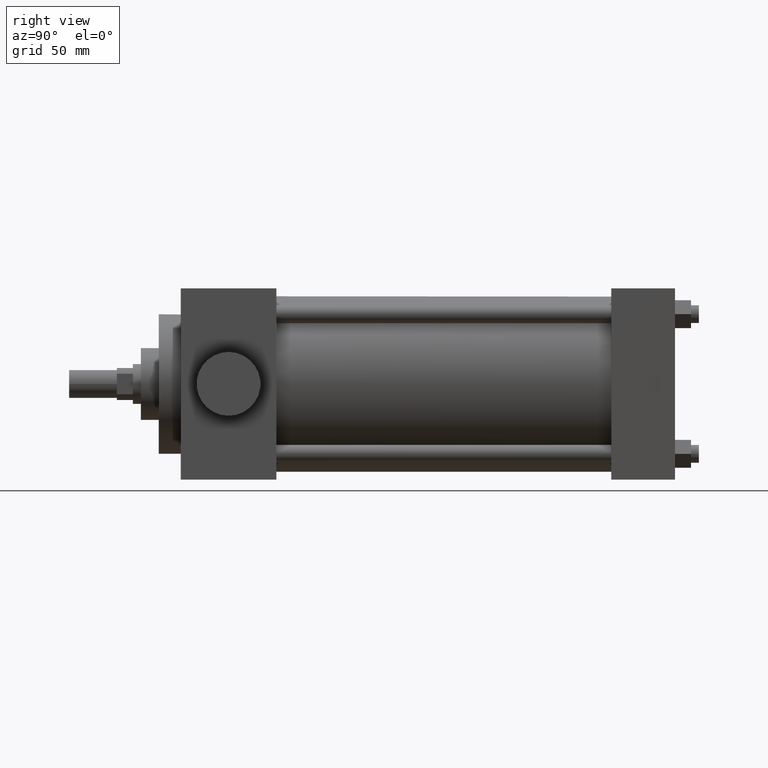
[diagram: clean part render]
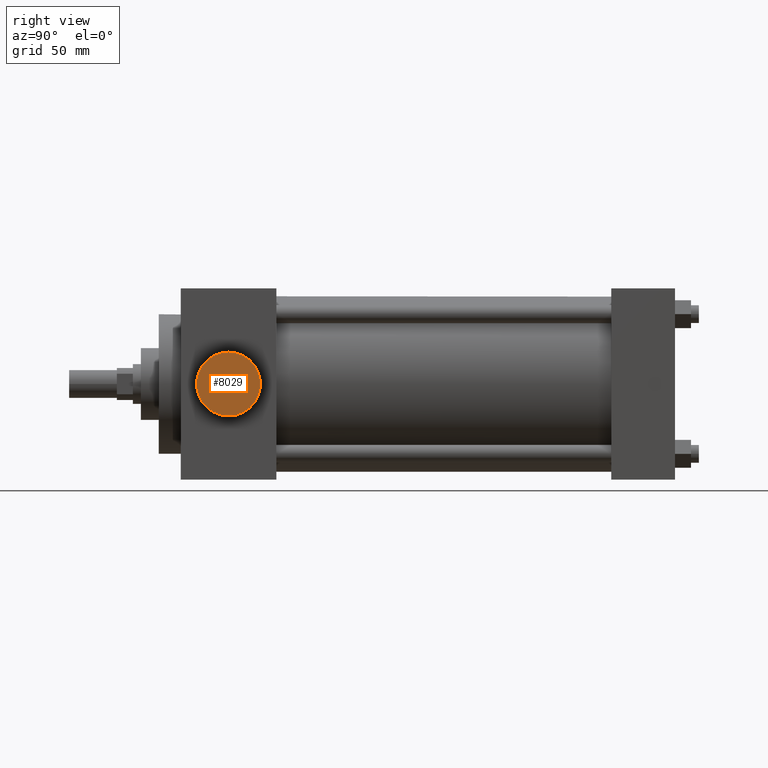
[diagram: same view with one face highlighted and labeled with its STEP entity id]
A machine part, right view. The second image highlights one B-rep face of the part: STEP entity #8029.
In plain terms, the highlighted planar face has unit normal (-1, 0, 0).
Its self-contained STEP definition (entity closure, byte-faithful):
#796=FACE_OUTER_BOUND('',#797,.T.);
#797=EDGE_LOOP('',(#798));
#798=ORIENTED_EDGE('',*,*,#799,.T.);
#799=EDGE_CURVE('',#805,#805,#800,.T.);
#800=CIRCLE('',#801,1.270000000E+001);
#801=AXIS2_PLACEMENT_3D('',#802,#803,#804);
#802=CARTESIAN_POINT('',(6.350000000E+001,4.445000000E+001,0.000000000E+000));
#803=DIRECTION('',(1.0E+000,0.0E+000,0.0E+000));
#804=DIRECTION('',(0.0E+000,0.0E+000,-1.0E+000));
#805=VERTEX_POINT('',#806);
#806=CARTESIAN_POINT('',(6.350000000E+001,4.445000000E+001,-1.270000000E+001));
#807=PLANE('',#808);
#808=AXIS2_PLACEMENT_3D('',#809,#810,#811);
#809=CARTESIAN_POINT('',(6.350000000E+001,4.445000000E+001,0.000000000E+000));
#810=DIRECTION('',(-1.0E+000,0.0E+000,0.0E+000));
#811=DIRECTION('',(0.0E+000,0.0E+000,1.0E+000));
#8029=ADVANCED_FACE('',(#796),#807,.F.);